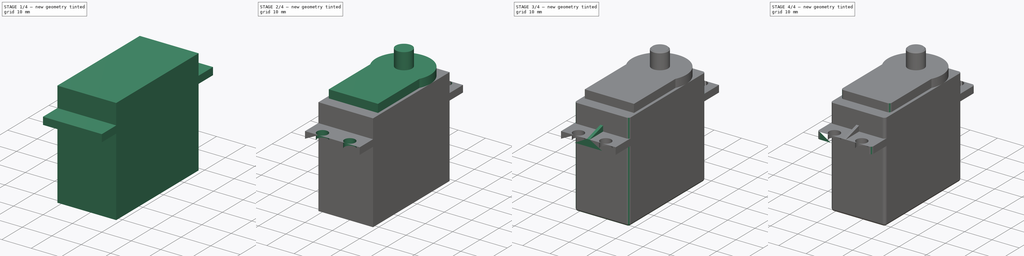
[diagram: build sequence overview — one tinted view per stage of 4, left to right]
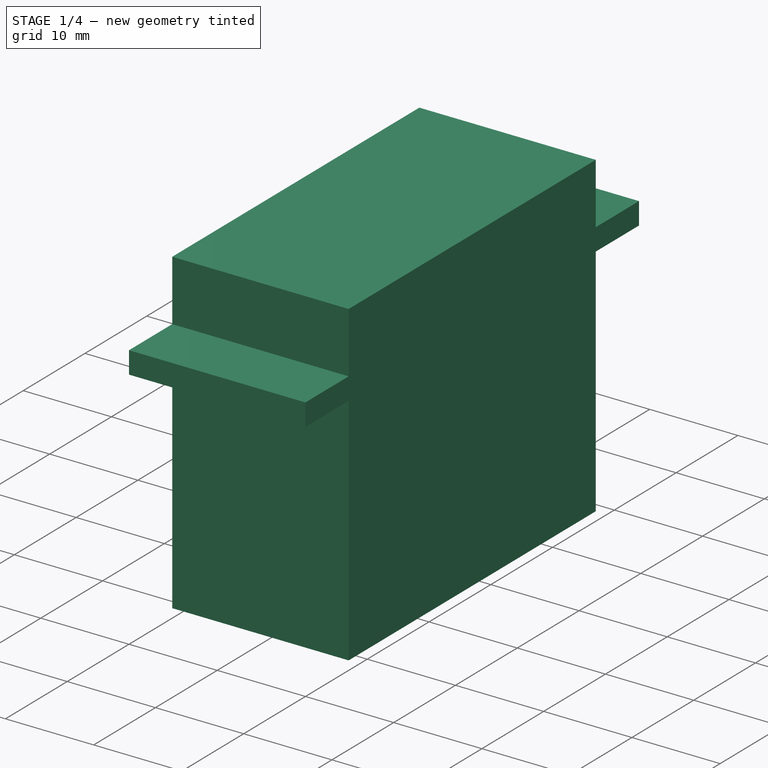
[diagram: stage 1 of 4 — iso view after this stage's code; geometry added in this stage tinted green]
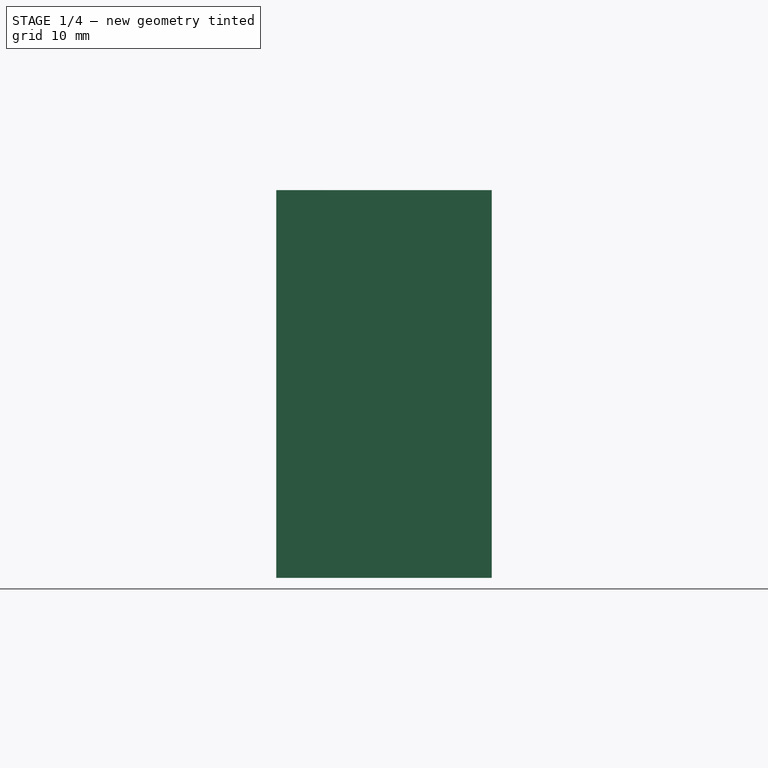
[diagram: stage 1 of 4 — front view after this stage's code; geometry added in this stage tinted green]
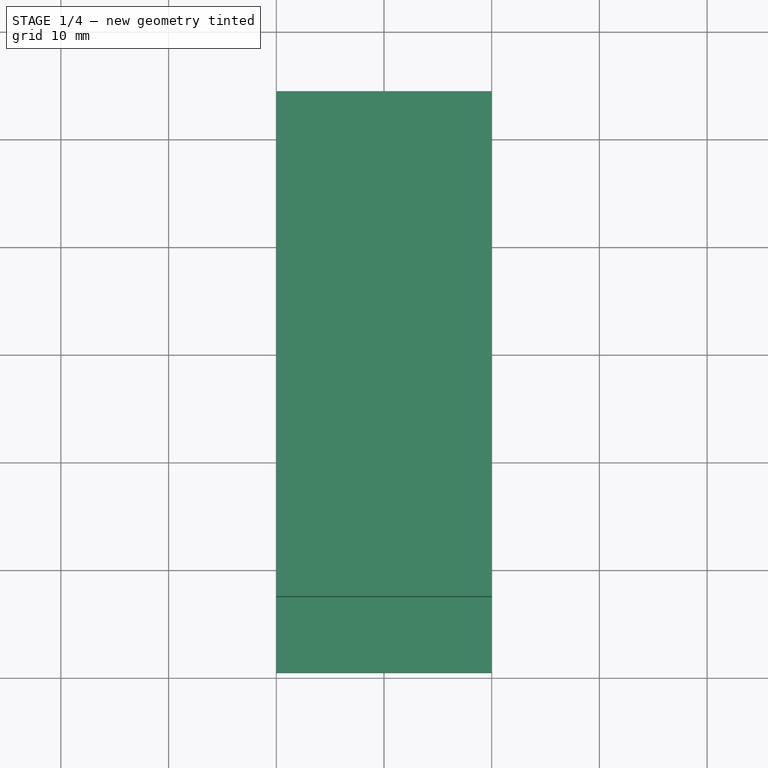
[diagram: stage 1 of 4 — top view after this stage's code; geometry added in this stage tinted green]
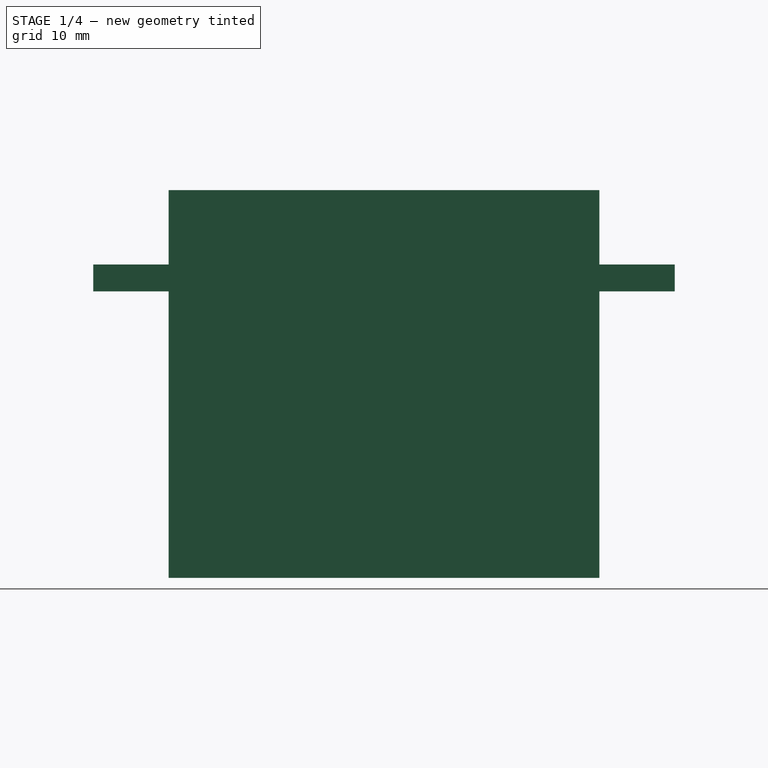
[diagram: stage 1 of 4 — right view after this stage's code; geometry added in this stage tinted green]
FCSTD DOCUMENT  (FreeCAD 0.20R29410 (Git))
Label: Servo_MG996R_DUMMY
License: All rights reserved
LicenseURL: http://en.wikipedia.org/wiki/All_rights_reserved
objects: Sketcher::SketchObject×6, PartDesign::Pad×4, PartDesign::Plane×4, PartDesign::Fillet×3, PartDesign::Pocket×2, PartDesign::Chamfer×1, PartDesign::Body×1
note: 31 computed .brp shape members not serialized (recipe doc carries the construction recipe); baked Part::Feature solids carry a one-line shape summary decoded from their .brp

FEATURE [Sketcher::SketchObject] Sketch
  FullyConstrained = true
  MapMode = 5
  Placement = pos=(0,0,0) rot=(0.57735,0.57735,0.57735;2.0944rad)
  Support = -> [YZ_Plane]
  sketch-geometry (4):
    g0: LineSegment StartX=0 StartY=0 StartZ=0 EndX=54 EndY=0 EndZ=0
    g1: LineSegment StartX=54 StartY=0 StartZ=0 EndX=54 EndY=36 EndZ=0
    g2: LineSegment StartX=54 StartY=36 StartZ=0 EndX=0 EndY=36 EndZ=0
    g3: LineSegment StartX=0 StartY=36 StartZ=0 EndX=0 EndY=0 EndZ=0
  constraints (11):
    c: Coincident(g0,g1)
    c: Coincident(g1,g2)
    c: Coincident(g2,g3)
    c: Coincident(g3,g0)
    c: Horizontal(g0)
    c: Horizontal(g2)
    c: Vertical(g1)
    c: Vertical(g3)
    c: Coincident(g0,g-1)
    c: DistanceY(g1,g1) = 36
    c: DistanceX(g2,g2) = 54
FEATURE [PartDesign::Pad] Pad
  Direction = (1,-2e-16,3e-16)
  Length = 20
  Length2 = 10
  Placement = pos=(0,0,0) rot=(0.57735,0.57735,0.57735;2.0944rad)
  Profile = -> Sketch
  ReferenceAxis = -> Sketch [N_Axis]
  Refine = true
  Type = 0
FEATURE [PartDesign::Plane] DatumPlane
  Length = 93.8728
  MapMode = 5
  Placement = pos=(20,-4.4e-15,4.4e-15) rot=(0.57735,0.57735,0.57735;2.0944rad)
  ResizeMode = 0
  Support = -> [Pad]
  Width = 84.8728
FEATURE [Sketcher::SketchObject] Sketch001
  ExternalGeometry = -> [Pad]
  FullyConstrained = true
  MapMode = 5
  Placement = pos=(20,-4.4e-15,4.4e-15) rot=(0.57735,0.57735,0.57735;2.0944rad)
  Support = -> [DatumPlane]
  sketch-geometry (16):
    g0: LineSegment StartX=0 StartY=0 StartZ=0 EndX=7 EndY=0 EndZ=0
    g1: LineSegment StartX=7 StartY=0 StartZ=0 EndX=7 EndY=26.6 EndZ=0
    g2: LineSegment StartX=7 StartY=26.6 StartZ=0 EndX=0 EndY=26.6 EndZ=0
    g3: LineSegment StartX=0 StartY=26.6 StartZ=0 EndX=0 EndY=0 EndZ=0
    g4: LineSegment StartX=54 StartY=-2.84e-14 StartZ=0 EndX=47 EndY=-2.84e-14 EndZ=0
    g5: LineSegment StartX=47 StartY=-2.84e-14 StartZ=0 EndX=47 EndY=26.6 EndZ=0
    g6: LineSegment StartX=47 StartY=26.6 StartZ=0 EndX=54 EndY=26.6 EndZ=0
    g7: LineSegment StartX=54 StartY=26.6 StartZ=0 EndX=54 EndY=-2.84e-14 EndZ=0
    g8: LineSegment StartX=1.42e-14 StartY=36 StartZ=0 EndX=7 EndY=36 EndZ=0
    g9: LineSegment StartX=7 StartY=36 StartZ=0 EndX=7 EndY=29.1 EndZ=0
    g10: LineSegment StartX=7 StartY=29.1 StartZ=0 EndX=1.42e-14 EndY=29.1 EndZ=0
    g11: LineSegment StartX=1.42e-14 StartY=29.1 StartZ=0 EndX=1.42e-14 EndY=36 EndZ=0
    g12: LineSegment StartX=54 StartY=36 StartZ=0 EndX=47 EndY=36 EndZ=0
    g13: LineSegment StartX=47 StartY=36 StartZ=0 EndX=47 EndY=29.1 EndZ=0
    g14: LineSegment StartX=47 StartY=29.1 StartZ=0 EndX=54 EndY=29.1 EndZ=0
    g15: LineSegment StartX=54 StartY=29.1 StartZ=0 EndX=54 EndY=36 EndZ=0
  constraints (44):
    c: Coincident(g0,g1)
    c: Coincident(g1,g2)
    c: Coincident(g2,g3)
    c: Coincident(g3,g0)
    c: Horizontal(g0)
    c: Horizontal(g2)
    c: Vertical(g1)
    c: Vertical(g3)
    c: Coincident(g0,g-1)
    c: Coincident(g4,g5)
    c: Coincident(g5,g6)
    c: Coincident(g6,g7)
    c: Coincident(g7,g4)
    c: Horizontal(g4)
    c: Horizontal(g6)
    c: Vertical(g5)
    c: Vertical(g7)
    c: Coincident(g4,g-4)
    c: DistanceY(g7,g7) = 26.6
    c: Equal(g7,g3)
    c: Equal(g6,g2)
    c: DistanceX(g0,g4) = 40
    c: Coincident(g8,g9)
    c: Coincident(g9,g10)
    c: Coincident(g10,g11)
    c: Coincident(g11,g8)
    c: Horizontal(g8)
    c: Horizontal(g10)
    c: Vertical(g9)
    c: Vertical(g11)
    c: Coincident(g8,g-3)
    c: Coincident(g12,g13)
    c: Coincident(g13,g14)
    c: Coincident(g14,g15)
    c: Coincident(g15,g12)
    c: Horizontal(g12)
    c: Horizontal(g14)
    c: Vertical(g13)
    c: Vertical(g15)
    c: Coincident(g12,g-4)
    c: Equal(g9,g13)
    c: Equal(g2,g8)
    c: Equal(g8,g12)
    c: DistanceY(g2,g10) = 2.5
FEATURE [PartDesign::Pocket] Pocket
  BaseFeature = -> Pad
  Direction = (-1,4e-16,-4e-16)
  Length = 5
  Length2 = 5
  Placement = pos=(0,0,0) rot=(0.57735,0.57735,0.57735;2.0944rad)
  Profile = -> Sketch001
  ReferenceAxis = -> Sketch001 [N_Axis]
  Refine = true
  Type = 1
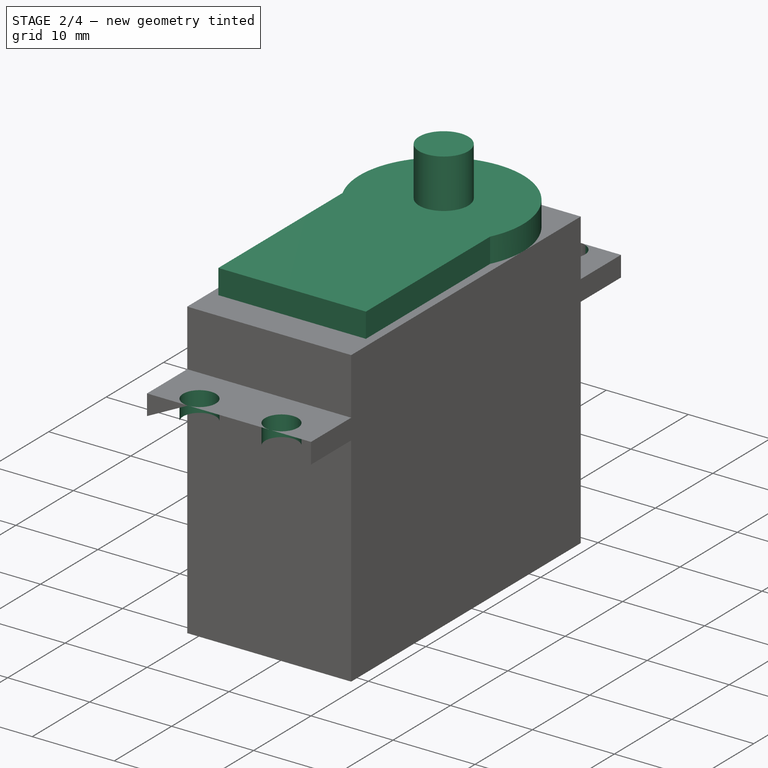
[diagram: stage 2 of 4 — iso view after this stage's code; geometry added in this stage tinted green]
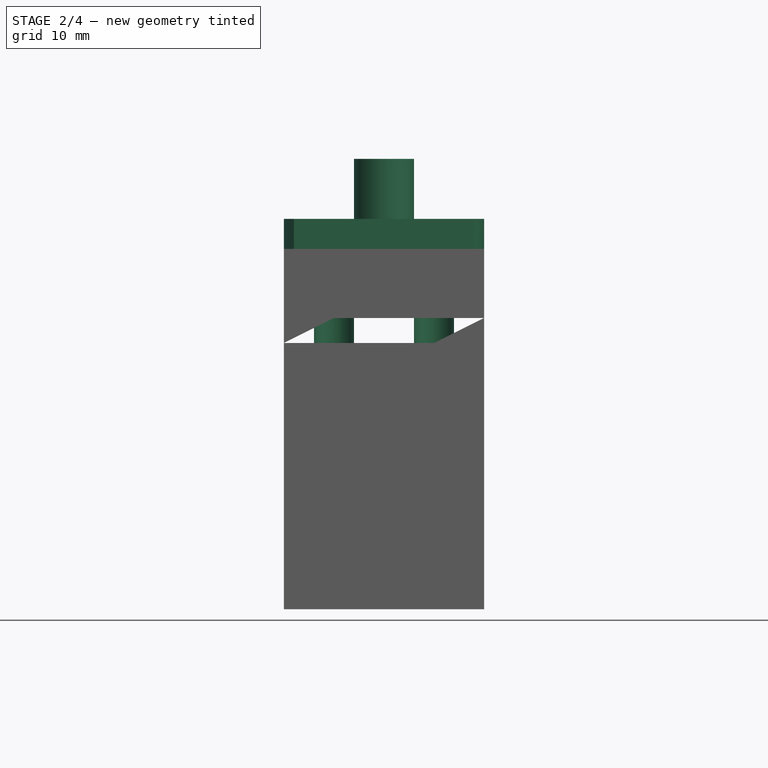
[diagram: stage 2 of 4 — front view after this stage's code; geometry added in this stage tinted green]
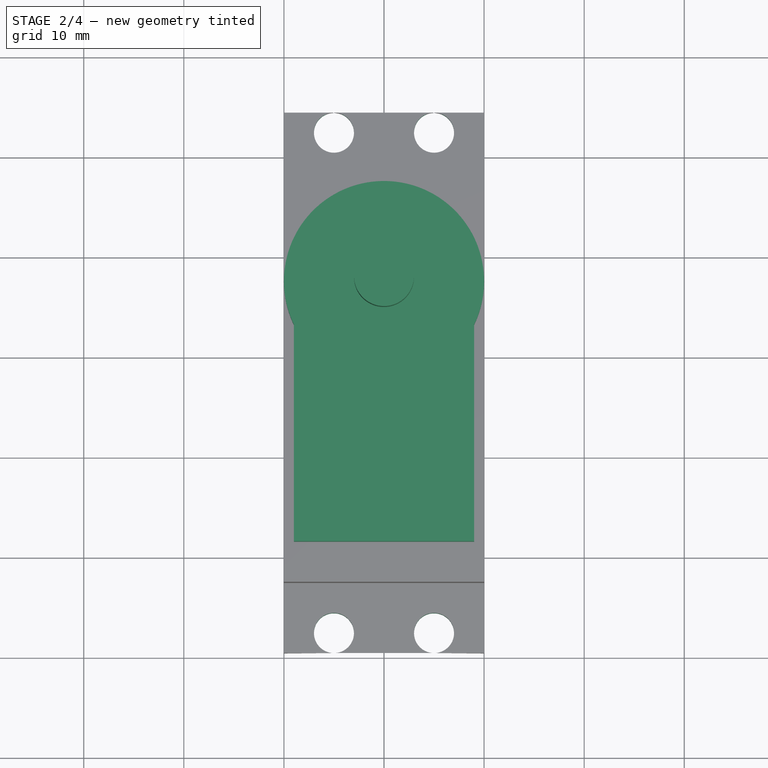
[diagram: stage 2 of 4 — top view after this stage's code; geometry added in this stage tinted green]
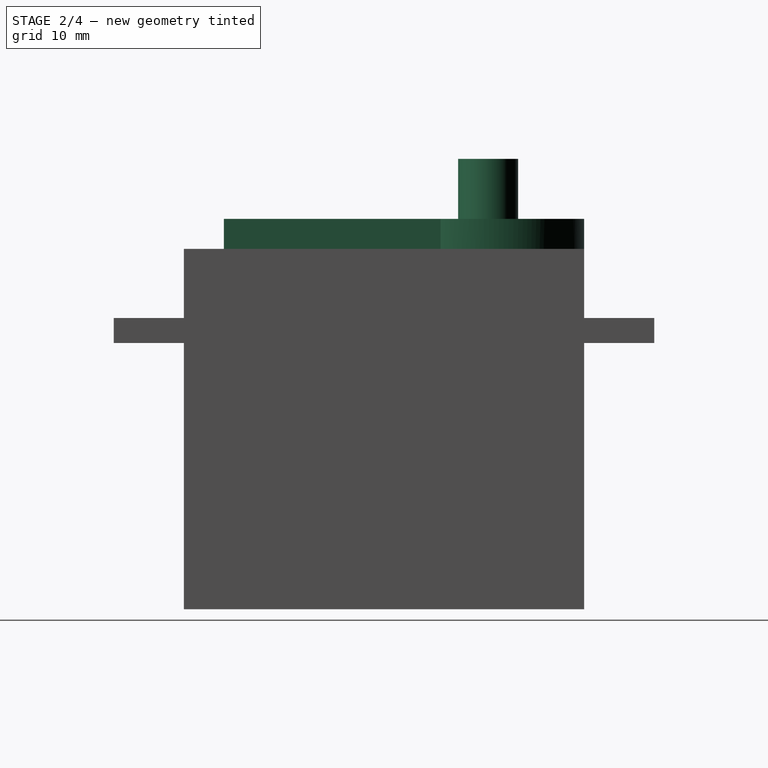
[diagram: stage 2 of 4 — right view after this stage's code; geometry added in this stage tinted green]
FEATURE [PartDesign::Plane] DatumPlane001
  Length = 91.5698
  MapMode = 5
  Placement = pos=(-1.01e-14,1.58e-14,36) rot=(0,0,-1;1.5708rad)
  ResizeMode = 0
  Support = -> [Pocket]
  Width = 62.5698
FEATURE [Sketcher::SketchObject] Sketch002
  ExternalGeometry = -> [Pocket]
  FullyConstrained = true
  MapMode = 5
  Placement = pos=(-1.01e-14,1.58e-14,36) rot=(0,0,-1;1.5708rad)
  Support = -> [DatumPlane001]
  sketch-geometry (5):
    g0: LineSegment StartX=-11 StartY=19 StartZ=0 EndX=-32.6411 EndY=19 EndZ=0
    g1: LineSegment StartX=-32.6411 StartY=1 StartZ=0 EndX=-11 EndY=1 EndZ=0
    g2: LineSegment StartX=-11 StartY=1 StartZ=0 EndX=-11 EndY=19 EndZ=0
    g3: ArcOfCircle CenterX=-37 CenterY=10 CenterZ=0 NormalX=0 NormalY=0 NormalZ=1 AngleXU=0 Radius=10 StartAngle=1.11977 EndAngle=5.16342
    g4: LineSegment StartX=-47 StartY=10 StartZ=0 EndX=-7 EndY=10 EndZ=0
  constraints (15):
    c: Coincident(g1,g2)
    c: Coincident(g2,g0)
    c: Horizontal(g0)
    c: Horizontal(g1)
    c: Coincident(g3,g0)
    c: Coincident(g3,g1)
    c: PointOnObject(g4,g-4)
    c: PointOnObject(g4,g-5)
    c: Symmetric(g-5,g-6,g4)
    c: Symmetric(g0,g1,g4)
    c: PointOnObject(g3,g4)
    c: DistanceX(g0,g-5) = 4
    c: PointOnObject(g4,g3)
    c: DistanceY(g2,g2) = 18
    c: Tangent(g-3,g3)
FEATURE [PartDesign::Pad] Pad001
  BaseFeature = -> Pocket
  Direction = (-7e-16,7e-16,1)
  Length = 3
  Length2 = 10
  Placement = pos=(0,0,0) rot=(0.57735,0.57735,0.57735;2.0944rad)
  Profile = -> Sketch002
  ReferenceAxis = -> Sketch002 [N_Axis]
  Refine = true
  Type = 0
FEATURE [Sketcher::SketchObject] Sketch003
  ExternalGeometry = -> [Pad001]
  FullyConstrained = true
  MapMode = 5
  Support = -> [XY_Plane]
  sketch-geometry (1):
    g0: Circle CenterX=10 CenterY=37.4 CenterZ=0 NormalX=0 NormalY=0 NormalZ=1 AngleXU=0 Radius=3
  constraints (3):
    c: DistanceY(g0,g-3) = 9.6
    c: Diameter(g0) = 6
    c: DistanceX(g-3,g0) = 10
FEATURE [PartDesign::Pad] Pad002
  BaseFeature = -> Pad001
  Direction = (0,0,1)
  Length = 45
  Length2 = 10
  Placement = pos=(0,0,0) rot=(0.57735,0.57735,0.57735;2.0944rad)
  Profile = -> Sketch003
  ReferenceAxis = -> Sketch003 [N_Axis]
  Refine = true
  Type = 0
FEATURE [PartDesign::Plane] DatumPlane002
  Length = 91.5698
  MapMode = 5
  Placement = pos=(-1.28e-14,6.4e-15,29.1) rot=(0,0,-1;1.5708rad)
  ResizeMode = 0
  Support = -> [Pad002]
  Width = 62.5698
FEATURE [Sketcher::SketchObject] Sketch004
  ExternalGeometry = -> [Pad002]
  FullyConstrained = true
  MapMode = 5
  Placement = pos=(-1.28e-14,6.4e-15,29.1) rot=(0,0,-1;1.5708rad)
  Support = -> [Pad002]
  sketch-geometry (8):
    g0: LineSegment StartX=0 StartY=10 StartZ=0 EndX=-54 EndY=10 EndZ=0
    g1: Circle CenterX=-52 CenterY=15 CenterZ=0 NormalX=0 NormalY=0 NormalZ=1 AngleXU=0 Radius=2
    g2: Circle CenterX=-52 CenterY=5 CenterZ=0 NormalX=0 NormalY=0 NormalZ=1 AngleXU=0 Radius=2
    g3: Circle CenterX=-2 CenterY=15 CenterZ=0 NormalX=0 NormalY=0 NormalZ=1 AngleXU=0 Radius=2
    g4: Circle CenterX=-2 CenterY=5 CenterZ=0 NormalX=0 NormalY=0 NormalZ=1 AngleXU=0 Radius=2
    g5: LineSegment StartX=-52 StartY=15 StartZ=0 EndX=-52 EndY=5 EndZ=0
    g6: LineSegment StartX=-2 StartY=15 StartZ=0 EndX=-2 EndY=5 EndZ=0
    g7: LineSegment StartX=-27 StartY=20 StartZ=0 EndX=-27 EndY=4.97e-14 EndZ=0
  constraints (22):
    c: PointOnObject(g0,g-2)
    c: Horizontal(g0)
    c: DistanceY(g-1,g0) = 10
    c: Tangent(g3,g-2)
    c: Tangent(g4,g-2)
    c: Diameter(g1) = 4
    c: Equal(g1,g2)
    c: Equal(g2,g3)
    c: Equal(g3,g4)
    c: Coincident(g5,g1)
    c: Coincident(g5,g2)
    c: Coincident(g6,g3)
    c: Coincident(g6,g4)
    c: DistanceX(g1,g3) = 50
    c: PointOnObject(g7,g-3)
    c: PointOnObject(g7,g-4)
    c: Vertical(g7)
    c: Symmetric(g1,g3,g7)
    c: DistanceY(g2,g1) = 10
    c: Symmetric(g1,g2,g0)
    c: Equal(g6,g5)
    c: PointOnObject(g0,g-5)
FEATURE [PartDesign::Pocket] Pocket001
  BaseFeature = -> Pad002
  Direction = (4e-16,-2e-16,-1)
  Length = 2.5
  Length2 = 5
  Placement = pos=(0,0,0) rot=(0.57735,0.57735,0.57735;2.0944rad)
  Profile = -> Sketch004
  ReferenceAxis = -> Sketch004 [N_Axis]
  Refine = true
  Type = 0
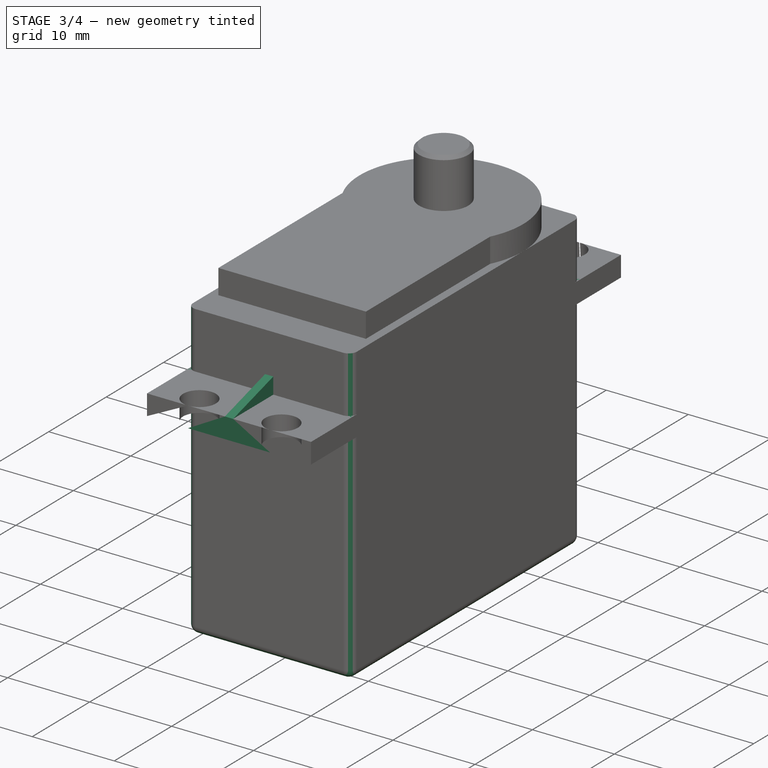
[diagram: stage 3 of 4 — iso view after this stage's code; geometry added in this stage tinted green]
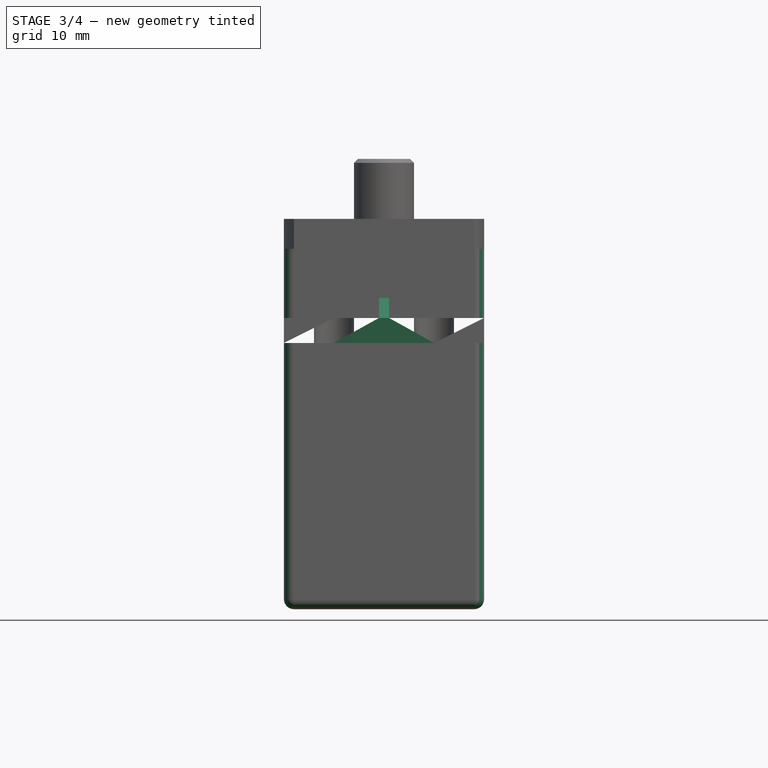
[diagram: stage 3 of 4 — front view after this stage's code; geometry added in this stage tinted green]
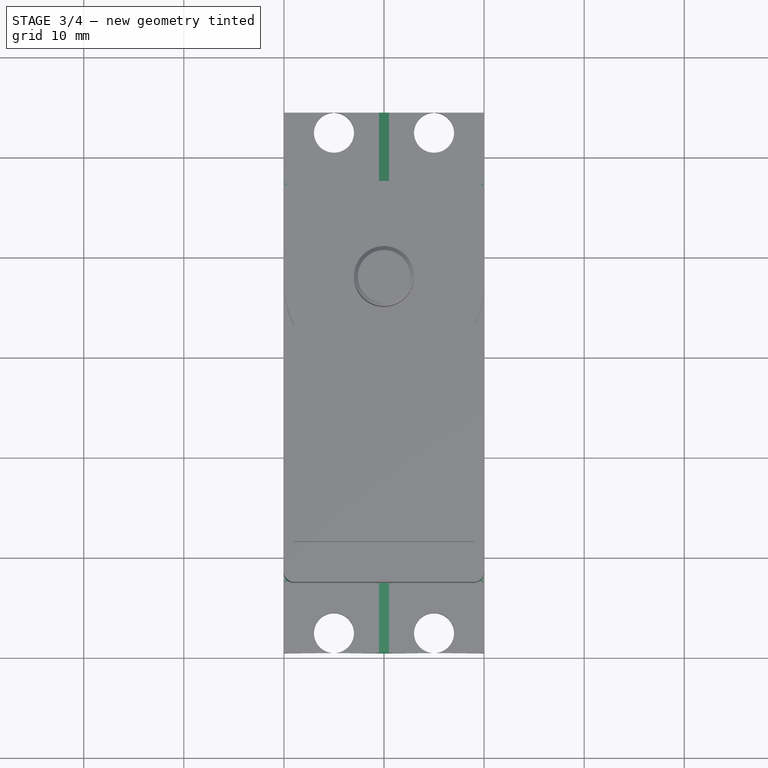
[diagram: stage 3 of 4 — top view after this stage's code; geometry added in this stage tinted green]
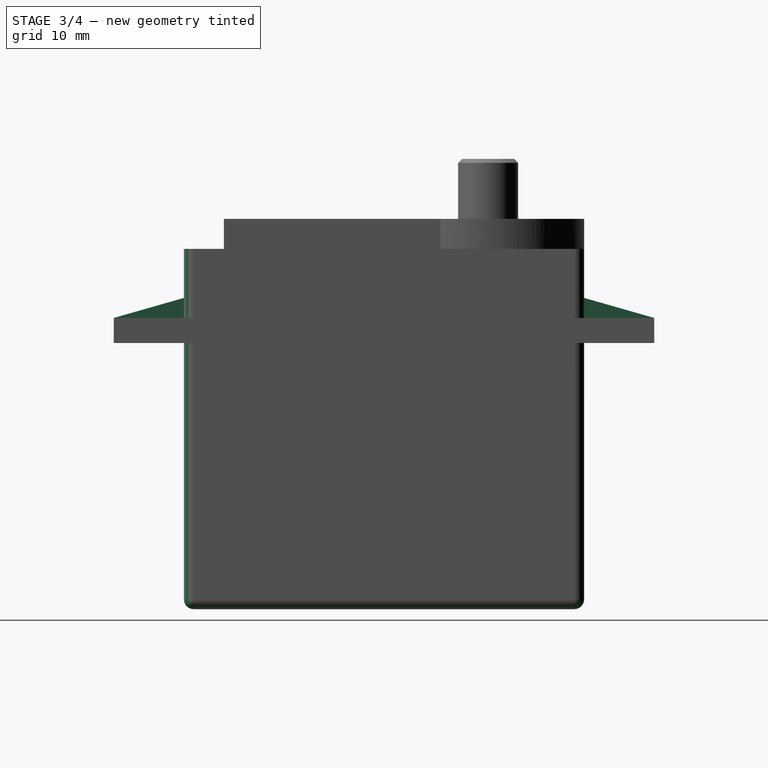
[diagram: stage 3 of 4 — right view after this stage's code; geometry added in this stage tinted green]
FEATURE [PartDesign::Plane] DatumPlane003
  Length = 93.8728
  MapMode = 5
  Placement = pos=(20,-4.4e-15,5.5e-15) rot=(0.57735,0.57735,0.57735;2.0944rad)
  ResizeMode = 0
  Support = -> [Pocket001]
  Width = 84.8728
FEATURE [Sketcher::SketchObject] Sketch005
  ExternalGeometry = -> [Pocket001]
  FullyConstrained = true
  MapMode = 5
  Placement = pos=(20,-4.4e-15,5.5e-15) rot=(0.57735,0.57735,0.57735;2.0944rad)
  Support = -> [DatumPlane003]
  sketch-geometry (6):
    g0: LineSegment StartX=2.75e-14 StartY=29.1 StartZ=0 EndX=7 EndY=31.1 EndZ=0
    g1: LineSegment StartX=7 StartY=31.1 StartZ=0 EndX=7 EndY=29.1 EndZ=0
    g2: LineSegment StartX=7 StartY=29.1 StartZ=0 EndX=2.75e-14 EndY=29.1 EndZ=0
    g3: LineSegment StartX=54 StartY=29.1 StartZ=0 EndX=47 EndY=29.1 EndZ=0
    g4: LineSegment StartX=47 StartY=29.1 StartZ=0 EndX=47 EndY=31.1 EndZ=0
    g5: LineSegment StartX=47 StartY=31.1 StartZ=0 EndX=54 EndY=29.1 EndZ=0
  constraints (14):
    c: Coincident(g0,g-3)
    c: PointOnObject(g0,g-4)
    c: Coincident(g1,g-4)
    c: Coincident(g2,g0)
    c: Coincident(g3,g-6)
    c: Coincident(g3,g-6)
    c: PointOnObject(g4,g-5)
    c: Coincident(g5,g3)
    c: Equal(g4,g1)
    c: DistanceY(g4,g4) = 2
    c: Coincident(g5,g4)
    c: Coincident(g0,g1)
    c: Coincident(g1,g2)
    c: Coincident(g3,g4)
FEATURE [PartDesign::Pad] Pad003
  BaseFeature = -> Pocket001
  Direction = (1,-2e-16,2e-16)
  Length = 10.5
  Length2 = -9.5
  Placement = pos=(0,0,0) rot=(0.57735,0.57735,0.57735;2.0944rad)
  Profile = -> Sketch005
  ReferenceAxis = -> Sketch005 [N_Axis]
  Refine = true
  Reversed = true
  Type = 4
FEATURE [PartDesign::Chamfer] Chamfer
  Angle = 45
  Base = -> Pad003 [Edge101]
  BaseFeature = -> Pad003
  ChamferType = 0
  FlipDirection = false
  Placement = pos=(0,0,0) rot=(0.57735,0.57735,0.57735;2.0944rad)
  Refine = true
  Size = 0.4
  Size2 = 1
  SupportTransform = false
  UseAllEdges = false
FEATURE [PartDesign::Fillet] Fillet
  Base = -> Chamfer [Edge37,Edge53,Face24,Edge28,Edge45,Edge39,Edge32,Edge49,Edge33]
  BaseFeature = -> Chamfer
  Placement = pos=(0,0,0) rot=(0.57735,0.57735,0.57735;2.0944rad)
  Radius = 1
  Refine = true
  SupportTransform = false
  UseAllEdges = false
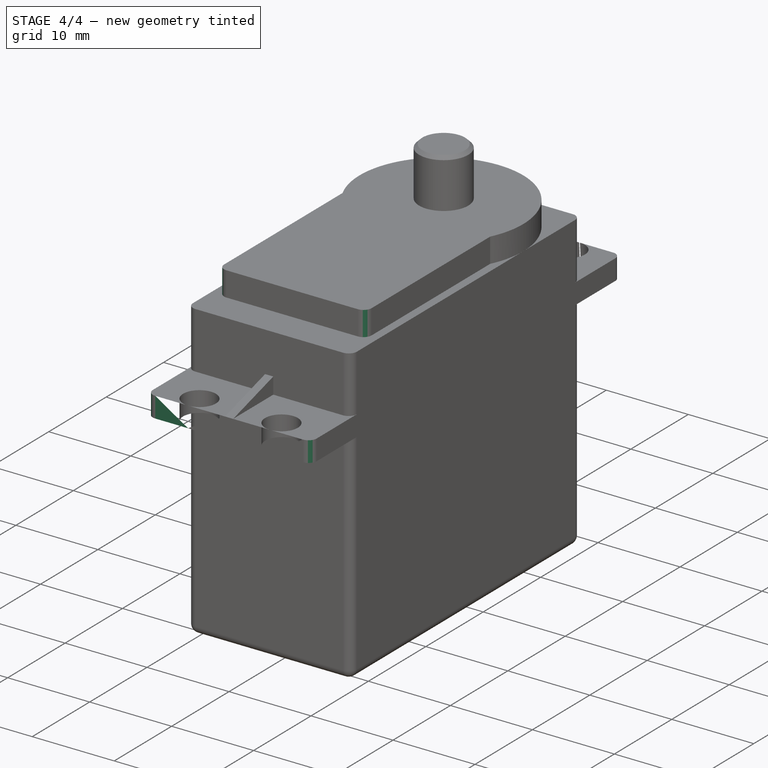
[diagram: stage 4 of 4 — iso view after this stage's code; geometry added in this stage tinted green]
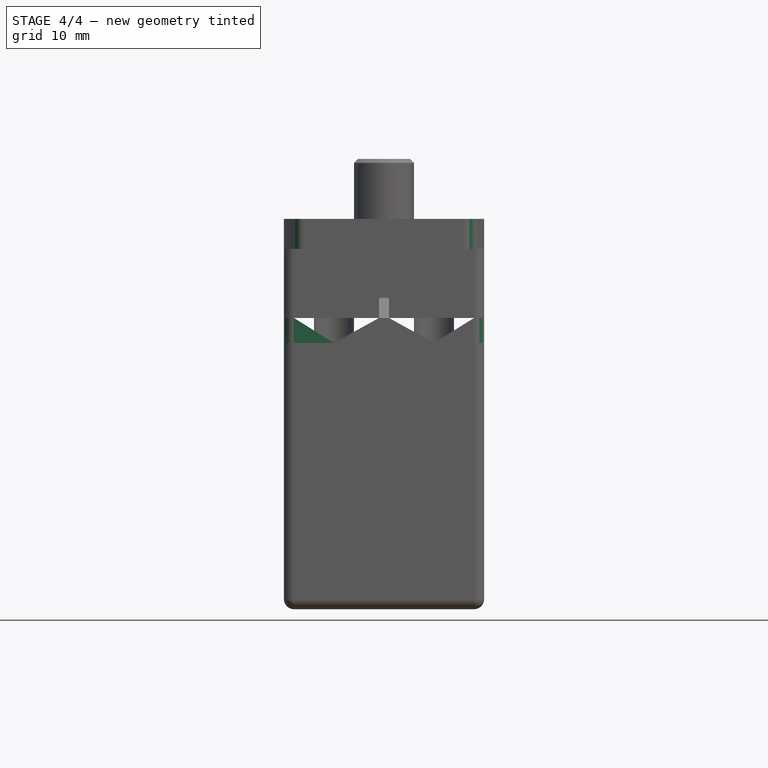
[diagram: stage 4 of 4 — front view after this stage's code; geometry added in this stage tinted green]
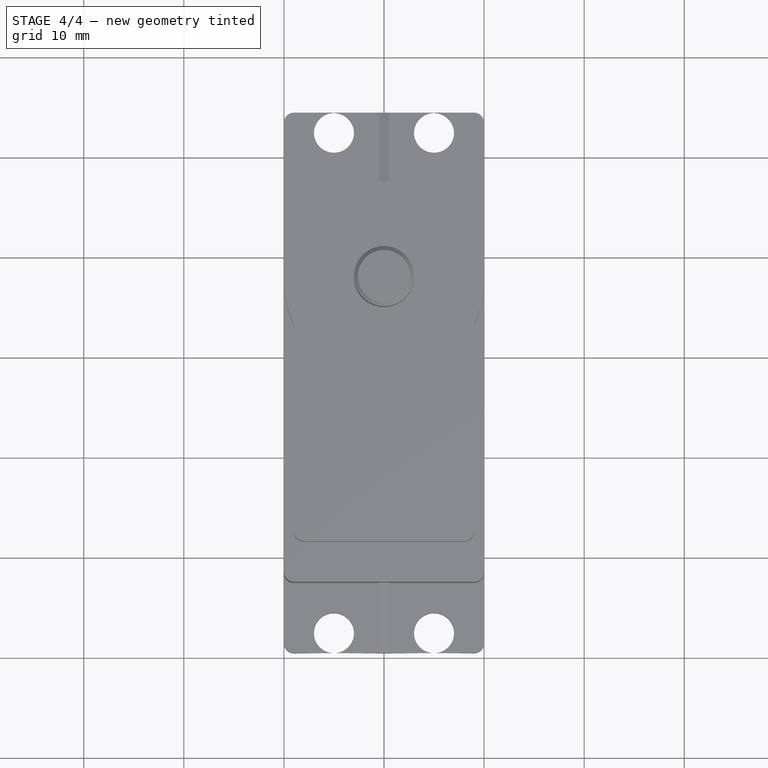
[diagram: stage 4 of 4 — top view after this stage's code; geometry added in this stage tinted green]
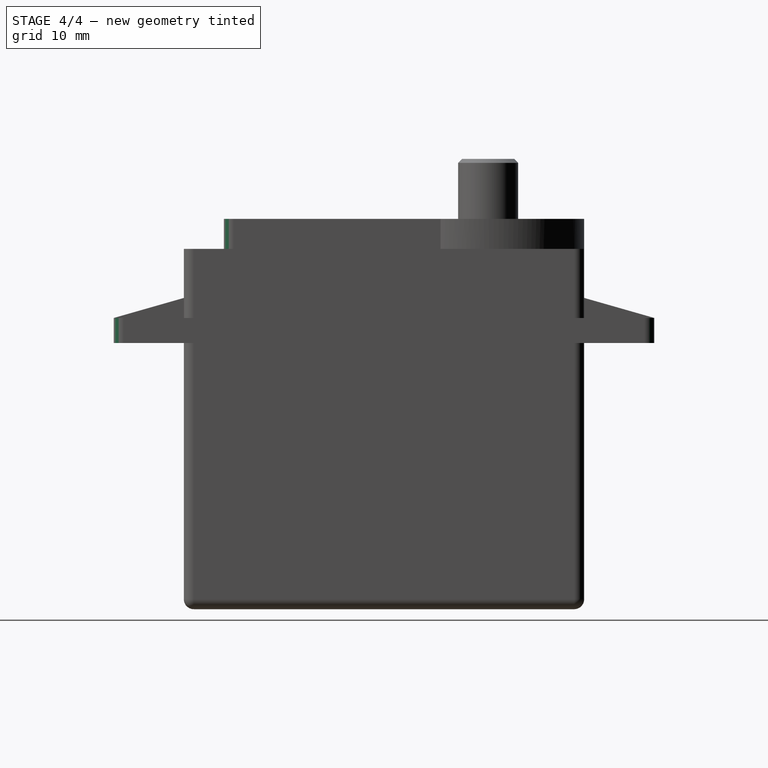
[diagram: stage 4 of 4 — right view after this stage's code; geometry added in this stage tinted green]
FEATURE [PartDesign::Fillet] Fillet001
  Base = -> Fillet [Edge17,Edge51,Edge20,Edge54]
  BaseFeature = -> Fillet
  Placement = pos=(0,0,0) rot=(0.57735,0.57735,0.57735;2.0944rad)
  Radius = 1
  Refine = true
  SupportTransform = false
  UseAllEdges = false
FEATURE [PartDesign::Fillet] Fillet002
  Base = -> Fillet001 [Edge124,Edge127]
  BaseFeature = -> Fillet001
  Placement = pos=(0,0,0) rot=(0.57735,0.57735,0.57735;2.0944rad)
  Radius = 1
  Refine = true
  SupportTransform = false
  UseAllEdges = false
FEATURE [PartDesign::Body] Body
  Group = -> [Sketch,Pad,DatumPlane,Sketch001,Pocket,DatumPlane001,Sketch002,Pad001,Sketch003,Pad002,DatumPlane002,Sketch004,Pocket001,DatumPlane003,Sketch005,Pad003,Chamfer,Fillet,Fillet001,Fillet002]
  Origin = -> Origin
  Tip = -> Fillet002
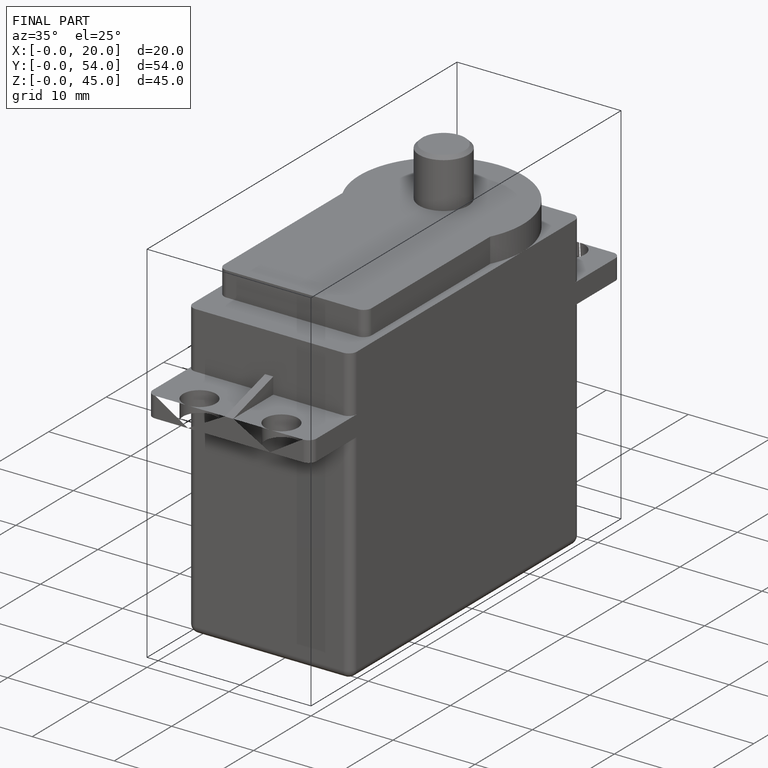
[diagram: finished part — iso view with bounding-box wireframe]
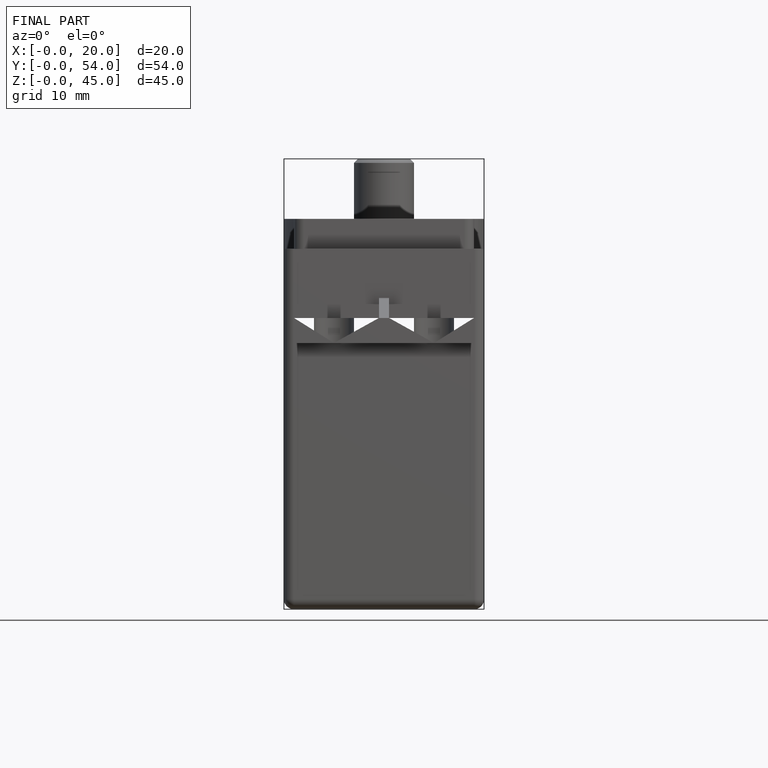
[diagram: finished part — front view with bounding-box wireframe]
